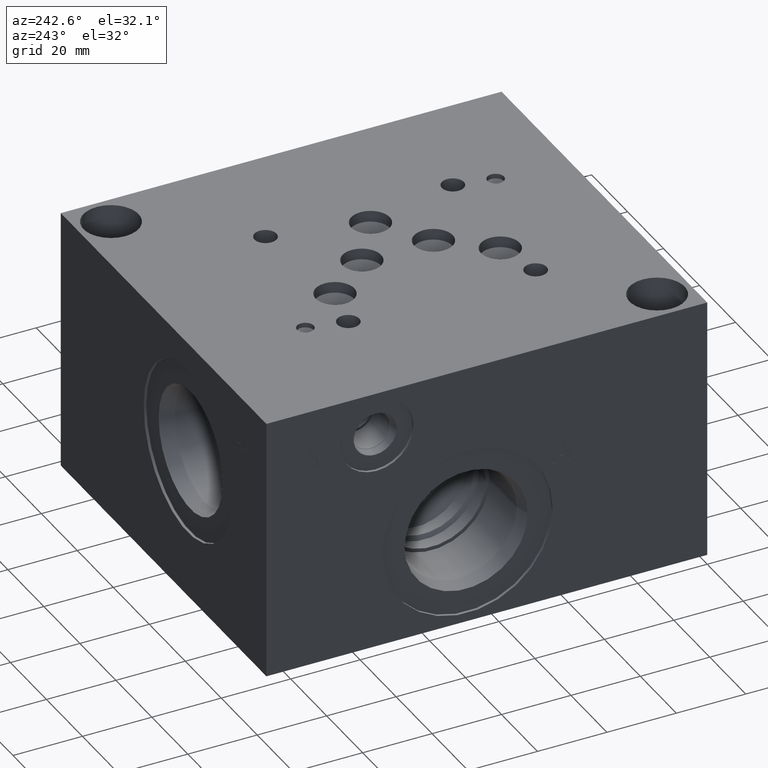
[diagram: clean part render]
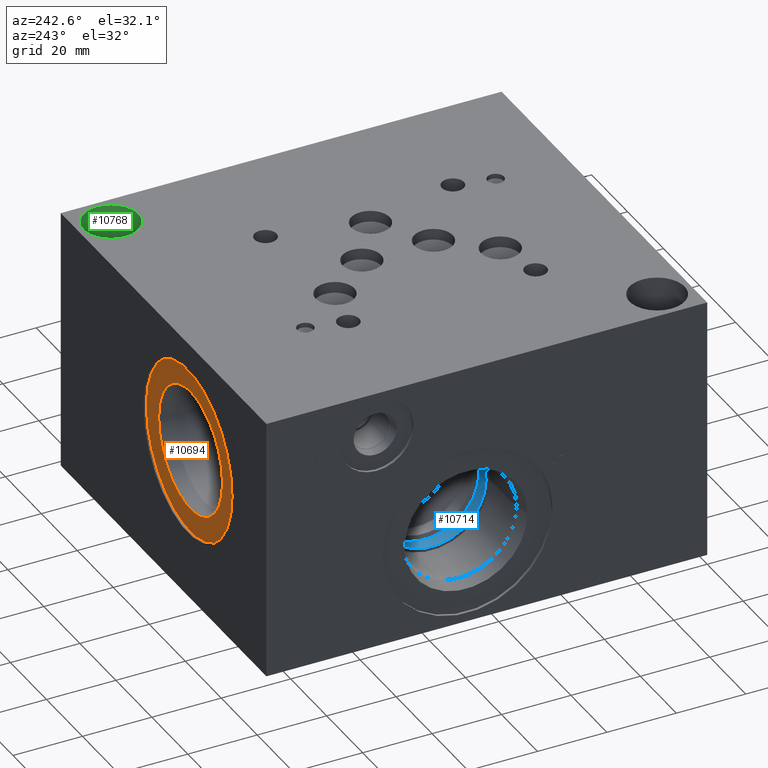
[diagram: same view with three faces highlighted in distinct colors, each labeled with its STEP entity id]
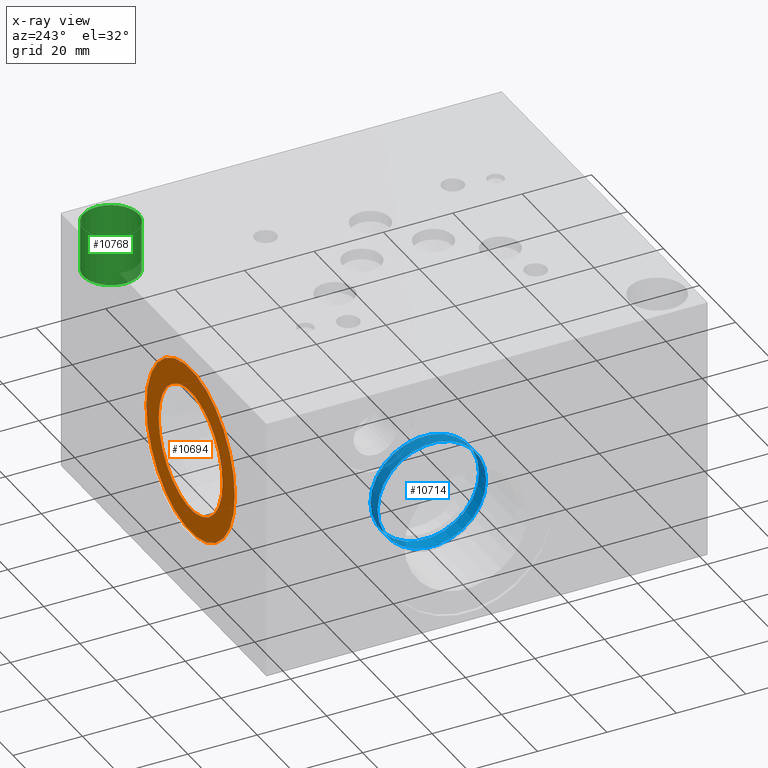
[diagram: x-ray of the same camera — body ghosted, the three highlighted faces saturated]
A machine part, auxiliary view with three faces highlighted in distinct colors.
The next image is the same camera in x-ray (body ghosted, the three faces saturated) — at least one of them is partly hidden behind the body in this view.
Their STEP definitions:

[orange] entity #10694 — the highlighted planar face has unit normal (0, 1, 0).
#178=CIRCLE('',#11185,24.5618);
#179=CIRCLE('',#11186,24.5618);
#180=CIRCLE('',#11187,17.7546);
#352=FACE_BOUND('',#1887,.T.);
#1286=FACE_OUTER_BOUND('',#1886,.T.);
#1886=EDGE_LOOP('',(#9061,#9062));
#1887=EDGE_LOOP('',(#9063));
#4879=VERTEX_POINT('',#18120);
#4880=VERTEX_POINT('',#18121);
#4881=VERTEX_POINT('',#18124);
#6317=EDGE_CURVE('',#4879,#4880,#178,.T.);
#6318=EDGE_CURVE('',#4880,#4879,#179,.T.);
#6319=EDGE_CURVE('',#4881,#4881,#180,.T.);
#9061=ORIENTED_EDGE('',*,*,#6317,.T.);
#9062=ORIENTED_EDGE('',*,*,#6318,.T.);
#9063=ORIENTED_EDGE('',*,*,#6319,.F.);
#9781=PLANE('',#11184);
#10694=ADVANCED_FACE('',(#1286,#352),#9781,.T.);
#11184=AXIS2_PLACEMENT_3D('',#18119,#13126,#13127);
#11185=AXIS2_PLACEMENT_3D('',#18122,#13128,#13129);
#11186=AXIS2_PLACEMENT_3D('',#18123,#13130,#13131);
#11187=AXIS2_PLACEMENT_3D('',#18125,#13132,#13133);
#13126=DIRECTION('center_axis',(0.,1.,0.));
#13127=DIRECTION('ref_axis',(1.,0.,0.));
#13128=DIRECTION('center_axis',(0.,1.,0.));
#13129=DIRECTION('ref_axis',(1.,0.,0.));
#13130=DIRECTION('center_axis',(0.,1.,0.));
#13131=DIRECTION('ref_axis',(1.,0.,0.));
#13132=DIRECTION('center_axis',(0.,1.,0.));
#13133=DIRECTION('ref_axis',(1.,0.,0.));
#18119=CARTESIAN_POINT('Origin',(43.6626,126.2126,43.6626));
#18120=CARTESIAN_POINT('',(68.2244,126.2126,43.6626));
#18121=CARTESIAN_POINT('',(19.1008,126.2126,43.6626));
#18122=CARTESIAN_POINT('Origin',(43.6626,126.2126,43.6626));
#18123=CARTESIAN_POINT('Origin',(43.6626,126.2126,43.6626));
#18124=CARTESIAN_POINT('',(25.908,126.2126,43.6626));
#18125=CARTESIAN_POINT('Origin',(43.6626,126.2126,43.6626));

[blue] entity #10714 — the highlighted cylindrical surface (bore or boss wall) has radius 15.6337 mm, axis along (-1, 0, 0).
#40=CYLINDRICAL_SURFACE('',#11238,15.6337);
#206=CIRCLE('',#11230,15.6337);
#207=CIRCLE('',#11231,15.6337);
#210=CIRCLE('',#11235,15.6337);
#1306=FACE_OUTER_BOUND('',#1910,.T.);
#1910=EDGE_LOOP('',(#9158,#9159,#9160,#9161,#9162));
#2956=LINE('',#18225,#3963);
#3963=VECTOR('',#13252,15.6337);
#4908=VERTEX_POINT('',#18208);
#4909=VERTEX_POINT('',#18209);
#4912=VERTEX_POINT('',#18218);
#6359=EDGE_CURVE('',#4908,#4909,#206,.T.);
#6361=EDGE_CURVE('',#4909,#4908,#207,.T.);
#6364=EDGE_CURVE('',#4912,#4912,#210,.T.);
#6367=EDGE_CURVE('',#4912,#4909,#2956,.T.);
#9158=ORIENTED_EDGE('',*,*,#6364,.T.);
#9159=ORIENTED_EDGE('',*,*,#6367,.T.);
#9160=ORIENTED_EDGE('',*,*,#6359,.F.);
#9161=ORIENTED_EDGE('',*,*,#6361,.F.);
#9162=ORIENTED_EDGE('',*,*,#6367,.F.);
#10714=ADVANCED_FACE('',(#1306),#40,.F.);
#11230=AXIS2_PLACEMENT_3D('',#18210,#13232,#13233);
#11231=AXIS2_PLACEMENT_3D('',#18212,#13235,#13236);
#11235=AXIS2_PLACEMENT_3D('',#18219,#13243,#13244);
#11238=AXIS2_PLACEMENT_3D('',#18224,#13250,#13251);
#13232=DIRECTION('center_axis',(-1.,0.,0.));
#13233=DIRECTION('ref_axis',(0.,1.,0.));
#13235=DIRECTION('center_axis',(-1.,0.,0.));
#13236=DIRECTION('ref_axis',(0.,1.,0.));
#13243=DIRECTION('center_axis',(-1.,0.,0.));
#13244=DIRECTION('ref_axis',(0.,1.,0.));
#13250=DIRECTION('center_axis',(-1.,0.,0.));
#13251=DIRECTION('ref_axis',(0.,1.,0.));
#13252=DIRECTION('',(1.,0.,0.));
#18208=CARTESIAN_POINT('',(23.79883,84.6963,26.9748));
#18209=CARTESIAN_POINT('',(23.79883,53.4289,26.9748));
#18210=CARTESIAN_POINT('Origin',(23.79883,69.0626,26.9748));
#18212=CARTESIAN_POINT('Origin',(23.79883,69.0626,26.9748));
#18218=CARTESIAN_POINT('',(19.8374,53.4289,26.9748));
#18219=CARTESIAN_POINT('Origin',(19.8374,69.0626,26.9748));
#18224=CARTESIAN_POINT('Origin',(11.899415,69.0626,26.9748));
#18225=CARTESIAN_POINT('',(11.899415,53.4289,26.9748));

[green] entity #10768 — the highlighted cylindrical surface (bore or boss wall) has radius 7.9375 mm, axis along (0, 0, 1).
#66=CYLINDRICAL_SURFACE('',#11383,7.9375);
#300=CIRCLE('',#11380,7.9375);
#301=CIRCLE('',#11381,7.9375);
#303=CIRCLE('',#11384,7.9375);
#304=CIRCLE('',#11385,7.9375);
#1360=FACE_OUTER_BOUND('',#1973,.T.);
#1973=EDGE_LOOP('',(#9411,#9412,#9413,#9414,#9415,#9416));
#3001=LINE('',#18523,#4008);
#4008=VECTOR('',#13591,7.9375);
#5015=VERTEX_POINT('',#18512);
#5016=VERTEX_POINT('',#18513);
#5018=VERTEX_POINT('',#18519);
#5019=VERTEX_POINT('',#18520);
#6500=EDGE_CURVE('',#5015,#5016,#300,.T.);
#6501=EDGE_CURVE('',#5016,#5015,#301,.T.);
#6503=EDGE_CURVE('',#5018,#5019,#303,.T.);
#6504=EDGE_CURVE('',#5019,#5018,#304,.T.);
#6505=EDGE_CURVE('',#5019,#5016,#3001,.T.);
#9411=ORIENTED_EDGE('',*,*,#6503,.F.);
#9412=ORIENTED_EDGE('',*,*,#6504,.F.);
#9413=ORIENTED_EDGE('',*,*,#6505,.T.);
#9414=ORIENTED_EDGE('',*,*,#6500,.F.);
#9415=ORIENTED_EDGE('',*,*,#6501,.F.);
#9416=ORIENTED_EDGE('',*,*,#6505,.F.);
#10768=ADVANCED_FACE('',(#1360),#66,.F.);
#11380=AXIS2_PLACEMENT_3D('',#18514,#13579,#13580);
#11381=AXIS2_PLACEMENT_3D('',#18515,#13581,#13582);
#11383=AXIS2_PLACEMENT_3D('',#18518,#13585,#13586);
#11384=AXIS2_PLACEMENT_3D('',#18521,#13587,#13588);
#11385=AXIS2_PLACEMENT_3D('',#18522,#13589,#13590);
#13579=DIRECTION('center_axis',(0.,0.,1.));
#13580=DIRECTION('ref_axis',(1.,0.,0.));
#13581=DIRECTION('center_axis',(0.,0.,1.));
#13582=DIRECTION('ref_axis',(1.,0.,0.));
#13585=DIRECTION('center_axis',(0.,0.,1.));
#13586=DIRECTION('ref_axis',(1.,0.,0.));
#13587=DIRECTION('center_axis',(0.,0.,-1.));
#13588=DIRECTION('ref_axis',(1.,0.,0.));
#13589=DIRECTION('center_axis',(0.,0.,-1.));
#13590=DIRECTION('ref_axis',(1.,0.,0.));
#13591=DIRECTION('',(0.,0.,-1.));
#18512=CARTESIAN_POINT('',(112.7125,117.475,61.9252));
#18513=CARTESIAN_POINT('',(96.8375,117.475,61.9252));
#18514=CARTESIAN_POINT('Origin',(104.775,117.475,61.9252));
#18515=CARTESIAN_POINT('Origin',(104.775,117.475,61.9252));
#18518=CARTESIAN_POINT('Origin',(104.775,117.475,69.0626));
#18519=CARTESIAN_POINT('',(112.7125,117.475,76.2));
#18520=CARTESIAN_POINT('',(96.8375,117.475,76.2));
#18521=CARTESIAN_POINT('Origin',(104.775,117.475,76.2));
#18522=CARTESIAN_POINT('Origin',(104.775,117.475,76.2));
#18523=CARTESIAN_POINT('',(96.8375,117.475,69.0626));